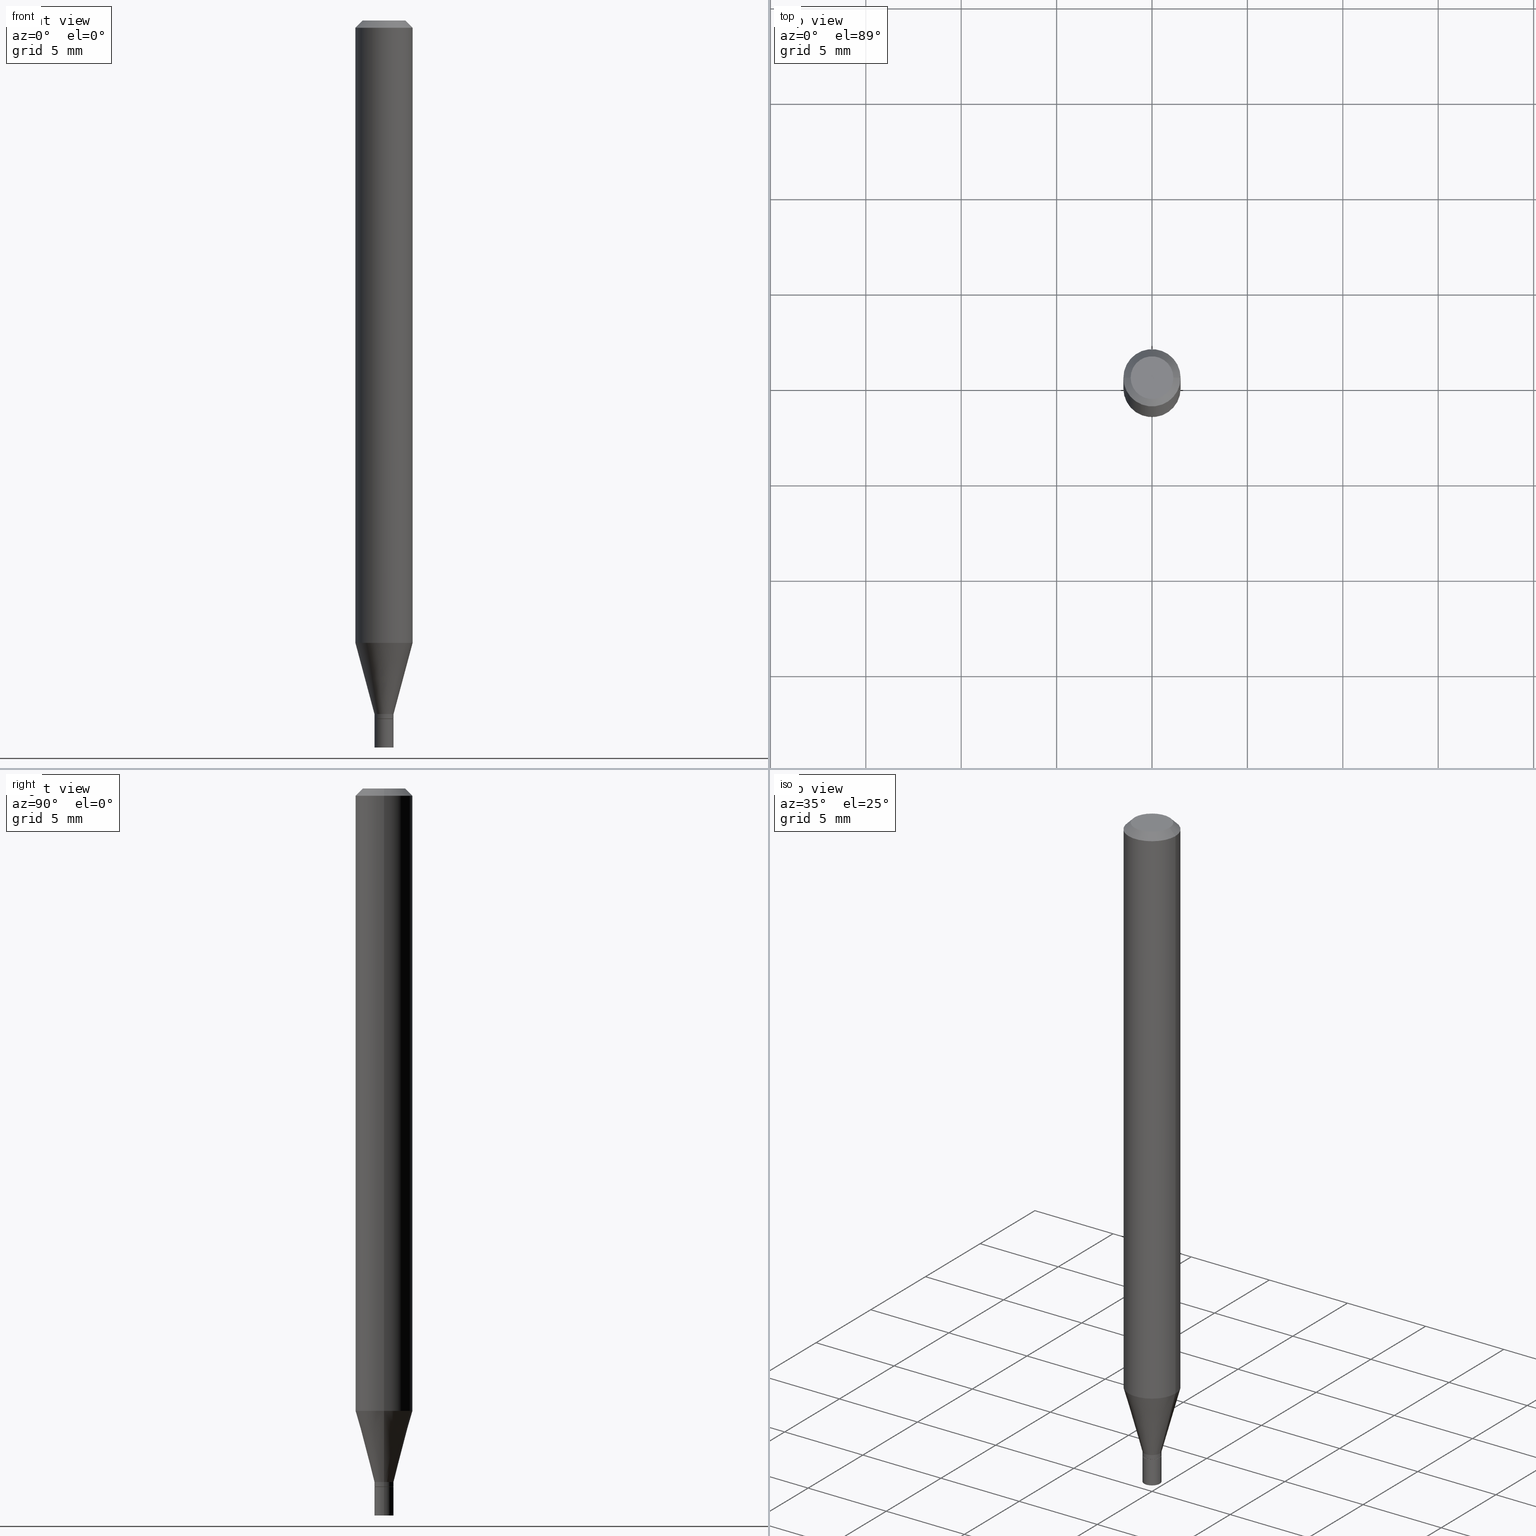
[diagram: canonical four-view strip — front | top / right | iso, engineering-drawing reading convention]
A machine part, canonical four-view strip (front | top / right | iso — engineering-drawing reading convention). The complete STEP part file that produces these views, byte-faithful:
ISO-10303-21;
HEADER;
FILE_DESCRIPTION (( 'STEP AP203' ),
    '1' );
FILE_NAME ('05085.STEP',
    '2024-03-14T17:47:37',
    ( '' ),
    ( '' ),
    'SwSTEP 2.0',
    'SolidWorks 2023',
    '' );
FILE_SCHEMA (( 'CONFIG_CONTROL_DESIGN' ));
ENDSEC;

DATA;
#1 = EDGE_CURVE ( 'NONE', #26, #137, #103, .T. ) ;
#2 = DIRECTION ( 'NONE',  ( 0.7071067811865656694, -2.468850131082446387E-15, 0.7071067811865294761 ) ) ;
#3 = EDGE_LOOP ( 'NONE', ( #279, #107, #358, #334 ) ) ;
#4 = CLOSED_SHELL ( 'NONE', ( #282, #310, #389, #378 ) ) ;
#5 = AXIS2_PLACEMENT_3D ( 'NONE', #386, #340, #23 ) ;
#6 = DIRECTION ( 'NONE',  ( -1.000000000000000000, 6.982962677686265922E-15, -4.876176775795935793E-29 ) ) ;
#7 = VERTEX_POINT ( 'NONE', #9 ) ;
#8 = AXIS2_PLACEMENT_3D ( 'NONE', #259, #188, #262 ) ;
#9 = CARTESIAN_POINT ( 'NONE',  ( -0.01969999999999965182, -4.459811605909121856E-15, -1.430900000000000061 ) ) ;
#10 = CC_DESIGN_DATE_AND_TIME_ASSIGNMENT ( #333, #335, ( #337 ) ) ;
#11 = APPROVAL_DATE_TIME ( #221, #274 ) ;
#12 = DIRECTION ( 'NONE',  ( 2.445468806185136597E-29, -3.491481338843145583E-15, -1.000000000000000000 ) ) ;
#13 = CARTESIAN_POINT ( 'NONE',  ( 3.522453268429071882E-29, -5.029129720469667852E-15, -1.440400000000000347 ) ) ;
#14 = DIRECTION ( 'NONE',  ( -2.445468806185136597E-29, 3.491481338843145583E-15, 1.000000000000000000 ) ) ;
#15 = DIRECTION ( 'NONE',  ( -2.445468806185136597E-29, 3.491481338843145583E-15, 1.000000000000000000 ) ) ;
#16 = CIRCLE ( 'NONE', #265, 0.01969999999999999876 ) ;
#17 = DIRECTION ( 'NONE',  ( -2.445468806185136597E-29, 3.491481338843145583E-15, 1.000000000000000000 ) ) ;
#18 = EDGE_LOOP ( 'NONE', ( #66, #401, #246, #182 ) ) ;
#19 = DIRECTION ( 'NONE',  ( 1.000000000000000000, -6.982962677686253300E-15, 0.000000000000000000 ) ) ;
#20 = LINE ( 'NONE', #86, #171 ) ;
#21 = VECTOR ( 'NONE', #336, 39.37007874015748143 ) ;
#22 = DIRECTION ( 'NONE',  ( -2.445468806185136597E-29, 3.491481338843145583E-15, 1.000000000000000000 ) ) ;
#23 = DIRECTION ( 'NONE',  ( 1.000000000000000000, -6.982962677686265922E-15, 4.876176775795935793E-29 ) ) ;
#24 = EDGE_CURVE ( 'NONE', #216, #431, #444, .T. ) ;
#25 = DIRECTION ( 'NONE',  ( 2.438088387897960049E-29, -3.491481338843145188E-15, -1.000000000000000000 ) ) ;
#26 = VERTEX_POINT ( 'NONE', #145 ) ;
#27 = CARTESIAN_POINT ( 'NONE',  ( 3.668203209277704895E-29, -5.237222008264718177E-15, -1.500000000000000222 ) ) ;
#28 = EDGE_LOOP ( 'NONE', ( #131, #191, #356, #466 ) ) ;
#29 = ADVANCED_FACE ( 'NONE', ( #300 ), #46, .T. ) ;
#30 = FACE_OUTER_BOUND ( 'NONE', #353, .T. ) ;
#31 = ORIENTED_EDGE ( 'NONE', *, *, #425, .T. ) ;
#32 = APPLICATION_CONTEXT ( 'configuration controlled 3d designs of mechanical parts and assemblies' ) ;
#33 = LINE ( 'NONE', #130, #38 ) ;
#34 = ORIENTED_EDGE ( 'NONE', *, *, #187, .T. ) ;
#35 = FACE_OUTER_BOUND ( 'NONE', #250, .T. ) ;
#36 = ORIENTED_EDGE ( 'NONE', *, *, #212, .T. ) ;
#37 = UNCERTAINTY_MEASURE_WITH_UNIT (LENGTH_MEASURE( 1.000000000000000082E-05 ), #252, 'distance_accuracy_value', 'NONE');
#38 = VECTOR ( 'NONE', #135, 39.37007874015748143 ) ;
#39 = EDGE_CURVE ( 'NONE', #431, #216, #379, .T. ) ;
#40 = APPROVAL_DATE_TIME ( #372, #254 ) ;
#41 = DIRECTION ( 'NONE',  ( 1.000000000000000000, -6.982962677686273021E-15, 0.000000000000000000 ) ) ;
#42 = APPROVAL_ROLE ( '' ) ;
#43 = DIRECTION ( 'NONE',  ( -0.7071067811865656694, 7.493145998870420424E-15, 0.7071067811865294761 ) ) ;
#44 = SHAPE_DEFINITION_REPRESENTATION ( #201, #305 ) ;
#45 = CARTESIAN_POINT ( 'NONE',  ( 3.523676002832163563E-29, -5.030875461139089355E-15, -1.440900000000000292 ) ) ;
#46 = CONICAL_SURFACE ( 'NONE', #263, 0.01919999999999999485, 0.7853981633974739252 ) ;
#47 = AXIS2_PLACEMENT_3D ( 'NONE', #306, #450, #124 ) ;
#48 = PERSON_AND_ORGANIZATION_ROLE ( 'design_supplier' ) ;
#49 = CARTESIAN_POINT ( 'NONE',  ( -8.641182519006283330E-45, 1.233731848647590289E-30, 3.533548453838708869E-16 ) ) ;
#50 = PERSON_AND_ORGANIZATION ( #160, #307 ) ;
#51 = CARTESIAN_POINT ( 'NONE',  ( 0.000000000000000000, 0.000000000000000000, 0.000000000000000000 ) ) ;
#52 = DIRECTION ( 'NONE',  ( -2.445468806185136597E-29, 3.491481338843145583E-15, 1.000000000000000000 ) ) ;
#53 = CC_DESIGN_APPROVAL ( #274, ( #290 ) ) ;
#54 = VECTOR ( 'NONE', #202, 39.37007874015748143 ) ;
#55 = CC_DESIGN_PERSON_AND_ORGANIZATION_ASSIGNMENT ( #440, #74, ( #272 ) ) ;
#56 = CARTESIAN_POINT ( 'NONE',  ( -0.01919999999999999485, -4.891802028699038955E-15, -1.440900000000000292 ) ) ;
#57 = PLANE ( 'NONE',  #5 ) ;
#58 = LOCAL_TIME ( 13, 47, 37.00000000000000000, #190 ) ;
#59 = DIRECTION ( 'NONE',  ( 1.000000000000000000, -6.982962677686265922E-15, 4.819687581474398999E-29 ) ) ;
#60 = ORIENTED_EDGE ( 'NONE', *, *, #39, .T. ) ;
#61 = AXIS2_PLACEMENT_3D ( 'NONE', #84, #223, #80 ) ;
#62 = CARTESIAN_POINT ( 'NONE',  ( -0.05904999999999999832, -4.063639483012322948E-15, -1.284043800722163953 ) ) ;
#63 = CARTESIAN_POINT ( 'NONE',  ( 0.05904999999999999832, -4.895558914596035784E-15, -1.284043800722163953 ) ) ;
#64 = EDGE_CURVE ( 'NONE', #206, #400, #436, .T. ) ;
#65 = CARTESIAN_POINT ( 'NONE',  ( 0.04404999999999999888, -3.798447818264454163E-16, 3.533548453838733521E-16 ) ) ;
#66 = ORIENTED_EDGE ( 'NONE', *, *, #177, .T. ) ;
#67 =( LENGTH_UNIT ( ) NAMED_UNIT ( * ) SI_UNIT ( $, .METRE. ) );
#68 = EDGE_CURVE ( 'NONE', #143, #26, #261, .T. ) ;
#69 = ORIENTED_EDGE ( 'NONE', *, *, #331, .T. ) ;
#70 = DIRECTION ( 'NONE',  ( 2.445468806185136597E-29, -3.491481338843145583E-15, -1.000000000000000000 ) ) ;
#71 = ORIENTED_EDGE ( 'NONE', *, *, #260, .T. ) ;
#72 = DIRECTION ( 'NONE',  ( -2.445468806185136877E-29, 3.491481338843145188E-15, 1.000000000000000000 ) ) ;
#73 = ORIENTED_EDGE ( 'NONE', *, *, #383, .F. ) ;
#74 = PERSON_AND_ORGANIZATION_ROLE ( 'design_owner' ) ;
#75 = VERTEX_POINT ( 'NONE', #339 ) ;
#76 = PERSON_AND_ORGANIZATION_ROLE ( 'creator' ) ;
#77 = CARTESIAN_POINT ( 'NONE',  ( 3.668203209277705088E-31, -5.237222008264718399E-17, -0.01499999999999999944 ) ) ;
#78 = CYLINDRICAL_SURFACE ( 'NONE', #119, 0.05904999999999999832 ) ;
#79 = APPROVAL_ROLE ( '' ) ;
#80 = DIRECTION ( 'NONE',  ( 1.000000000000000000, -6.982962677686266711E-15, 0.000000000000000000 ) ) ;
#81 = EDGE_CURVE ( 'NONE', #253, #457, #301, .T. ) ;
#82 = CIRCLE ( 'NONE', #309, 0.04404999999999999888 ) ;
#83 = CALENDAR_DATE ( 2024, 14, 3 ) ;
#84 = CARTESIAN_POINT ( 'NONE',  ( 3.668203209277705088E-31, -5.237222008264718399E-17, -0.01499999999999999944 ) ) ;
#85 = APPROVAL_PERSON_ORGANIZATION ( #434, #132, #42 ) ;
#86 = CARTESIAN_POINT ( 'NONE',  ( 0.01969999999999965182, -5.133525012501073765E-15, -1.430900000000000061 ) ) ;
#87 = CC_DESIGN_PERSON_AND_ORGANIZATION_ASSIGNMENT ( #256, #432, ( #337 ) ) ;
#88 = CARTESIAN_POINT ( 'NONE',  ( 3.576687321579069994E-29, -5.368277968210015545E-15, -1.500000000000000222 ) ) ;
#89 = CONICAL_SURFACE ( 'NONE', #47, 0.01919999999999999485, 0.7853981633974739252 ) ;
#90 = LINE ( 'NONE', #235, #354 ) ;
#91 = DIRECTION ( 'NONE',  ( 0.2588190451025216832, 1.565188264969619798E-15, 0.9659258262890679791 ) ) ;
#92 = APPROVAL_PERSON_ORGANIZATION ( #288, #254, #227 ) ;
#93 = DIRECTION ( 'NONE',  ( -2.445468806185136597E-29, 3.491481338843145583E-15, 1.000000000000000000 ) ) ;
#94 = EDGE_LOOP ( 'NONE', ( #34, #320, #443, #412 ) ) ;
#95 = AXIS2_PLACEMENT_3D ( 'NONE', #172, #70, #319 ) ;
#96 = CYLINDRICAL_SURFACE ( 'NONE', #156, 0.01969999999999999876 ) ;
#97 = ORIENTED_EDGE ( 'NONE', *, *, #269, .F. ) ;
#98 = CARTESIAN_POINT ( 'NONE',  ( 0.01919999999999999485, -5.164948344550665562E-15, -1.440900000000000292 ) ) ;
#99 = ORIENTED_EDGE ( 'NONE', *, *, #343, .T. ) ;
#100 = EDGE_CURVE ( 'NONE', #189, #424, #315, .T. ) ;
#101 = CARTESIAN_POINT ( 'NONE',  ( 3.075995059520799729E-16, 0.04404999999999999888, 2.287766971589489619E-17 ) ) ;
#102 = EDGE_LOOP ( 'NONE', ( #264, #153, #360, #303 ) ) ;
#103 = CIRCLE ( 'NONE', #61, 0.05904999999999999832 ) ;
#104 = CARTESIAN_POINT ( 'NONE',  ( 3.499221314770312017E-29, -4.995960647750656917E-15, -1.430900000000000061 ) ) ;
#105 = ORIENTED_EDGE ( 'NONE', *, *, #425, .F. ) ;
#106 = ORIENTED_EDGE ( 'NONE', *, *, #365, .F. ) ;
#107 = ORIENTED_EDGE ( 'NONE', *, *, #121, .F. ) ;
#108 = COORDINATED_UNIVERSAL_TIME_OFFSET ( 5, 0, .BEHIND. ) ;
#109 = DIRECTION ( 'NONE',  ( 1.000000000000000000, -6.982962677686265922E-15, 4.819687581474398999E-29 ) ) ;
#110 = AXIS2_PLACEMENT_3D ( 'NONE', #342, #273, #157 ) ;
#111 = ADVANCED_FACE ( 'NONE', ( #441 ), #186, .T. ) ;
#112 = APPROVAL_STATUS ( 'not_yet_approved' ) ;
#113 = DIRECTION ( 'NONE',  ( -2.445468806185136597E-29, 3.491481338843145583E-15, 1.000000000000000000 ) ) ;
#114 = EDGE_CURVE ( 'NONE', #189, #400, #258, .T. ) ;
#115 = PERSON_AND_ORGANIZATION ( #160, #307 ) ;
#116 = CARTESIAN_POINT ( 'NONE',  ( 0.000000000000000000, 0.000000000000000000, 0.000000000000000000 ) ) ;
#117 = APPROVAL_PERSON_ORGANIZATION ( #326, #274, #79 ) ;
#118 = CARTESIAN_POINT ( 'NONE',  ( 0.05904999999999999832, -4.574846268510561447E-16, -0.01499999999999999944 ) ) ;
#119 = AXIS2_PLACEMENT_3D ( 'NONE', #51, #194, #231 ) ;
#120 = DIRECTION ( 'NONE',  ( 1.000000000000000000, -6.982962677686258033E-15, 0.000000000000000000 ) ) ;
#121 = EDGE_CURVE ( 'NONE', #143, #463, #226, .T. ) ;
#122 = AXIS2_PLACEMENT_3D ( 'NONE', #101, #390, #6 ) ;
#123 = LINE ( 'NONE', #159, #54 ) ;
#124 = DIRECTION ( 'NONE',  ( 1.000000000000000000, -6.982962677686253300E-15, 0.000000000000000000 ) ) ;
#125 = EDGE_CURVE ( 'NONE', #463, #137, #299, .T. ) ;
#126 = DIRECTION ( 'NONE',  ( -2.445468806185136877E-29, 3.491481338843145188E-15, 1.000000000000000000 ) ) ;
#127 = CARTESIAN_POINT ( 'NONE',  ( 3.499221314770312017E-29, -4.995960647750656917E-15, -1.430900000000000061 ) ) ;
#128 = PLANE ( 'NONE',  #293 ) ;
#129 = AXIS2_PLACEMENT_3D ( 'NONE', #245, #426, #324 ) ;
#130 = CARTESIAN_POINT ( 'NONE',  ( -0.01969999999999978366, 1.399769189447381994E-16, -9.690302127802057404E-31 ) ) ;
#131 = ORIENTED_EDGE ( 'NONE', *, *, #64, .T. ) ;
#132 = APPROVAL ( #368, 'UNSPECIFIED' ) ;
#133 = CARTESIAN_POINT ( 'NONE',  ( 3.523676002832163563E-29, -5.030875461139089355E-15, -1.440900000000000292 ) ) ;
#134 = ORIENTED_EDGE ( 'NONE', *, *, #404, .F. ) ;
#135 = DIRECTION ( 'NONE',  ( -2.445468806185136877E-29, 3.491481338843145188E-15, 1.000000000000000000 ) ) ;
#136 = MANIFOLD_SOLID_BREP ( 'Body-Move/Copy2[2]', #451 ) ;
#137 = VERTEX_POINT ( 'NONE', #257 ) ;
#138 = PLANE ( 'NONE',  #122 ) ;
#139 = AXIS2_PLACEMENT_3D ( 'NONE', #162, #22, #311 ) ;
#140 = ORIENTED_EDGE ( 'NONE', *, *, #376, .T. ) ;
#141 = APPLICATION_CONTEXT ( 'configuration controlled 3d designs of mechanical parts and assemblies' ) ;
#142 = CARTESIAN_POINT ( 'NONE',  ( 1.375643647504546638E-16, 0.01969999999999496459, -1.440900000000000292 ) ) ;
#143 = VERTEX_POINT ( 'NONE', #403 ) ;
#144 = APPROVAL_STATUS ( 'not_yet_approved' ) ;
#145 = CARTESIAN_POINT ( 'NONE',  ( -0.05904999999999999832, -1.848218108814315465E-15, -0.01499999999999999944 ) ) ;
#146 = ADVANCED_FACE ( 'NONE', ( #375 ), #150, .T. ) ;
#147 = MANIFOLD_SOLID_BREP ( 'Body-Move/Copy2[1]', #4 ) ;
#148 = PERSON_AND_ORGANIZATION ( #160, #307 ) ;
#149 = DIRECTION ( 'NONE',  ( -1.000000000000000000, 6.982962677686266711E-15, 0.000000000000000000 ) ) ;
#150 = CONICAL_SURFACE ( 'NONE', #371, 0.05904999999999999832, 0.7853981633974366217 ) ;
#151 = ADVANCED_FACE ( 'NONE', ( #406 ), #78, .T. ) ;
#152 = CARTESIAN_POINT ( 'NONE',  ( 3.668203209277704895E-29, -5.237222008264718177E-15, -1.500000000000000222 ) ) ;
#153 = ORIENTED_EDGE ( 'NONE', *, *, #125, .T. ) ;
#154 = DIRECTION ( 'NONE',  ( 1.000000000000000000, -6.982962677686253300E-15, 0.000000000000000000 ) ) ;
#155 = ADVANCED_FACE ( 'NONE', ( #377 ), #57, .F. ) ;
#156 = AXIS2_PLACEMENT_3D ( 'NONE', #357, #352, #166 ) ;
#157 = DIRECTION ( 'NONE',  ( 1.000000000000000000, -6.982962677686267499E-15, 4.876176775795935793E-29 ) ) ;
#158 = FACE_OUTER_BOUND ( 'NONE', #295, .T. ) ;
#159 = CARTESIAN_POINT ( 'NONE',  ( -0.01969999999999999876, 1.399769189447397278E-16, -9.690302127802162501E-31 ) ) ;
#160 = PERSON ( 'UNSPECIFIED', 'UNSPECIFIED', 'UNSPECIFIED', ('UNSPECIFIED'), ('UNSPECIFIED'), ('UNSPECIFIED') ) ;
#161 = AXIS2_PLACEMENT_3D ( 'NONE', #127, #302, #199 ) ;
#162 = CARTESIAN_POINT ( 'NONE',  ( 3.499221314770312017E-29, -4.995960647750656917E-15, -1.430900000000000061 ) ) ;
#163 = VECTOR ( 'NONE', #2, 39.37007874015748143 ) ;
#164 = CYLINDRICAL_SURFACE ( 'NONE', #110, 0.01969999999999978366 ) ;
#165 =( GEOMETRIC_REPRESENTATION_CONTEXT ( 3 ) GLOBAL_UNCERTAINTY_ASSIGNED_CONTEXT ( ( #37 ) ) GLOBAL_UNIT_ASSIGNED_CONTEXT ( ( #252, #442, #296 ) ) REPRESENTATION_CONTEXT ( 'NONE', 'WORKASPACE' ) );
#166 = DIRECTION ( 'NONE',  ( 1.000000000000000000, -6.982962677686265922E-15, 4.876176775795935232E-29 ) ) ;
#167 = DIMENSIONAL_EXPONENTS ( 1.000000000000000000, 0.000000000000000000, 0.000000000000000000, 0.000000000000000000, 0.000000000000000000, 0.000000000000000000, 0.000000000000000000 ) ;
#168 = CC_DESIGN_PERSON_AND_ORGANIZATION_ASSIGNMENT ( #148, #48, ( #464 ) ) ;
#169 = EDGE_LOOP ( 'NONE', ( #411, #429 ) ) ;
#170 = AXIS2_PLACEMENT_3D ( 'NONE', #222, #327, #41 ) ;
#171 = VECTOR ( 'NONE', #91, 39.37007874015748143 ) ;
#172 = CARTESIAN_POINT ( 'NONE',  ( 3.668203209277705088E-31, -5.237222008264718399E-17, -0.01499999999999999944 ) ) ;
#173 = ORIENTED_EDGE ( 'NONE', *, *, #447, .F. ) ;
#174 = DIRECTION ( 'NONE',  ( -2.445468806185136597E-29, 3.491481338843145583E-15, 1.000000000000000000 ) ) ;
#175 = ORIENTED_EDGE ( 'NONE', *, *, #121, .T. ) ;
#176 = CC_DESIGN_APPROVAL ( #132, ( #337 ) ) ;
#177 = EDGE_CURVE ( 'NONE', #424, #189, #402, .T. ) ;
#178 = LINE ( 'NONE', #355, #218 ) ;
#179 = EDGE_LOOP ( 'NONE', ( #106, #214, #36, #284 ) ) ;
#180 = DIRECTION ( 'NONE',  ( 1.000000000000000000, -6.982962677686267499E-15, 4.876176775795935793E-29 ) ) ;
#181 = VECTOR ( 'NONE', #280, 39.37007874015748143 ) ;
#182 = ORIENTED_EDGE ( 'NONE', *, *, #449, .F. ) ;
#183 = COORDINATED_UNIVERSAL_TIME_OFFSET ( 5, 0, .BEHIND. ) ;
#184 = DIRECTION ( 'NONE',  ( -2.445468806185136597E-29, 3.491481338843145583E-15, 1.000000000000000000 ) ) ;
#185 = DATE_AND_TIME ( #294, #58 ) ;
#186 = CYLINDRICAL_SURFACE ( 'NONE', #437, 0.05904999999999999832 ) ;
#187 = EDGE_CURVE ( 'NONE', #75, #7, #459, .T. ) ;
#188 = DIRECTION ( 'NONE',  ( 0.000000000000000000, 0.000000000000000000, 1.000000000000000000 ) ) ;
#189 = VERTEX_POINT ( 'NONE', #56 ) ;
#190 = COORDINATED_UNIVERSAL_TIME_OFFSET ( 5, 0, .BEHIND. ) ;
#191 = ORIENTED_EDGE ( 'NONE', *, *, #404, .T. ) ;
#192 = LOCAL_TIME ( 13, 47, 37.00000000000000000, #183 ) ;
#193 = PERSON_AND_ORGANIZATION_ROLE ( 'creator' ) ;
#194 = DIRECTION ( 'NONE',  ( -2.445468806185136597E-29, 3.491481338843145583E-15, 1.000000000000000000 ) ) ;
#195 = CARTESIAN_POINT ( 'NONE',  ( -0.05904999999999999832, 4.195754854663391478E-16, -2.904631170795521892E-30 ) ) ;
#196 = AXIS2_PLACEMENT_3D ( 'NONE', #152, #15, #292 ) ;
#197 = VECTOR ( 'NONE', #72, 39.37007874015748143 ) ;
#198 = CYLINDRICAL_SURFACE ( 'NONE', #277, 0.01969999999999999876 ) ;
#199 = DIRECTION ( 'NONE',  ( 1.000000000000000000, -6.982962677686254089E-15, 0.000000000000000000 ) ) ;
#200 = ADVANCED_FACE ( 'NONE', ( #270 ), #164, .T. ) ;
#201 = PRODUCT_DEFINITION_SHAPE ( 'NONE', 'NONE',  #290 ) ;
#202 = DIRECTION ( 'NONE',  ( -2.445468806185136877E-29, 3.491481338843145188E-15, 1.000000000000000000 ) ) ;
#203 = AXIS2_PLACEMENT_3D ( 'NONE', #142, #25, #249 ) ;
#204 = DIRECTION ( 'NONE',  ( 1.000000000000000000, -6.982962677686254089E-15, 0.000000000000000000 ) ) ;
#205 = DIRECTION ( 'NONE',  ( 1.000000000000000000, -6.982962677686278543E-15, 0.000000000000000000 ) ) ;
#206 = VERTEX_POINT ( 'NONE', #381 ) ;
#207 = CYLINDRICAL_SURFACE ( 'NONE', #445, 0.01969999999999978366 ) ;
#208 = EDGE_LOOP ( 'NONE', ( #325, #219, #314, #211 ) ) ;
#209 = AXIS2_PLACEMENT_3D ( 'NONE', #104, #174, #210 ) ;
#210 = DIRECTION ( 'NONE',  ( 1.000000000000000000, -6.982962677686254089E-15, 0.000000000000000000 ) ) ;
#211 = ORIENTED_EDGE ( 'NONE', *, *, #331, .F. ) ;
#212 = EDGE_CURVE ( 'NONE', #75, #431, #20, .T. ) ;
#213 = FACE_OUTER_BOUND ( 'NONE', #28, .T. ) ;
#214 = ORIENTED_EDGE ( 'NONE', *, *, #347, .T. ) ;
#215 = LENGTH_MEASURE_WITH_UNIT ( LENGTH_MEASURE( 0.02539999999999999897 ), #67 );
#216 = VERTEX_POINT ( 'NONE', #62 ) ;
#217 = COORDINATED_UNIVERSAL_TIME_OFFSET ( 5, 0, .BEHIND. ) ;
#218 = VECTOR ( 'NONE', #462, 39.37007874015748143 ) ;
#219 = ORIENTED_EDGE ( 'NONE', *, *, #238, .T. ) ;
#220 = CC_DESIGN_PERSON_AND_ORGANIZATION_ASSIGNMENT ( #50, #193, ( #464 ) ) ;
#221 = DATE_AND_TIME ( #83, #392 ) ;
#222 = CARTESIAN_POINT ( 'NONE',  ( 3.140089060441456086E-29, -4.483214968478662441E-15, -1.284043800722163953 ) ) ;
#223 = DIRECTION ( 'NONE',  ( -2.445468806185136597E-29, 3.491481338843145583E-15, 1.000000000000000000 ) ) ;
#224 = DATE_TIME_ROLE ( 'creation_date' ) ;
#225 = DIRECTION ( 'NONE',  ( 1.000000000000000000, -6.982962677686266711E-15, 4.876176775795936353E-29 ) ) ;
#226 = CIRCLE ( 'NONE', #430, 0.04404999999999999888 ) ;
#227 = APPROVAL_ROLE ( '' ) ;
#228 = DIRECTION ( 'NONE',  ( -2.445468806185136597E-29, 3.491481338843145583E-15, 1.000000000000000000 ) ) ;
#229 = EDGE_CURVE ( 'NONE', #400, #206, #255, .T. ) ;
#230 = LOCAL_TIME ( 13, 47, 37.00000000000000000, #405 ) ;
#231 = DIRECTION ( 'NONE',  ( 1.000000000000000000, -6.982962677686266711E-15, 4.876176775795936353E-29 ) ) ;
#232 = FACE_OUTER_BOUND ( 'NONE', #18, .T. ) ;
#233 = AXIS2_PLACEMENT_3D ( 'NONE', #13, #369, #120 ) ;
#234 = AXIS2_PLACEMENT_3D ( 'NONE', #268, #382, #308 ) ;
#235 = CARTESIAN_POINT ( 'NONE',  ( 0.01969999999999999876, -1.375643647504194363E-16, 9.606068248317991466E-31 ) ) ;
#236 = CARTESIAN_POINT ( 'NONE',  ( -8.641182519006283330E-45, 1.233731848647590289E-30, 3.533548453838708869E-16 ) ) ;
#237 = CARTESIAN_POINT ( 'NONE',  ( 0.000000000000000000, 0.000000000000000000, 0.000000000000000000 ) ) ;
#238 = EDGE_CURVE ( 'NONE', #253, #351, #123, .T. ) ;
#239 = CARTESIAN_POINT ( 'NONE',  ( -0.01969999999999965182, -4.855983728805919186E-15, -1.430900000000000061 ) ) ;
#240 = AXIS2_PLACEMENT_3D ( 'NONE', #133, #321, #205 ) ;
#241 = ORIENTED_EDGE ( 'NONE', *, *, #229, .T. ) ;
#242 = ADVANCED_FACE ( 'NONE', ( #344 ), #345, .T. ) ;
#243 = CARTESIAN_POINT ( 'NONE',  ( 0.01919999999999999485, -5.164948344550665562E-15, -1.440900000000000292 ) ) ;
#244 = EDGE_LOOP ( 'NONE', ( #60, #71, #97, #105 ) ) ;
#245 = CARTESIAN_POINT ( 'NONE',  ( 3.523676002832163563E-29, -5.030875461139089355E-15, -1.440900000000000292 ) ) ;
#246 = ORIENTED_EDGE ( 'NONE', *, *, #64, .F. ) ;
#247 = AXIS2_PLACEMENT_3D ( 'NONE', #364, #446, #373 ) ;
#248 = AXIS2_PLACEMENT_3D ( 'NONE', #312, #93, #448 ) ;
#249 = DIRECTION ( 'NONE',  ( -1.000000000000000000, 6.982962677686265922E-15, -4.876176775795935793E-29 ) ) ;
#250 = EDGE_LOOP ( 'NONE', ( #140, #391 ) ) ;
#251 = ORIENTED_EDGE ( 'NONE', *, *, #229, .F. ) ;
#252 =( CONVERSION_BASED_UNIT ( 'INCH', #215 ) LENGTH_UNIT ( ) NAMED_UNIT ( #167 ) );
#253 = VERTEX_POINT ( 'NONE', #271 ) ;
#254 = APPROVAL ( #144, 'UNSPECIFIED' ) ;
#255 = CIRCLE ( 'NONE', #248, 0.01969999999999991896 ) ;
#256 = PERSON_AND_ORGANIZATION ( #160, #307 ) ;
#257 = CARTESIAN_POINT ( 'NONE',  ( 0.05904999999999999832, -4.647161662000212105E-16, -0.01499999999999999944 ) ) ;
#258 = LINE ( 'NONE', #435, #421 ) ;
#259 = CARTESIAN_POINT ( 'NONE',  ( 0.000000000000000000, 0.000000000000000000, 0.000000000000000000 ) ) ;
#260 = EDGE_CURVE ( 'NONE', #216, #26, #418, .T. ) ;
#261 = LINE ( 'NONE', #267, #21 ) ;
#262 = DIRECTION ( 'NONE',  ( 1.000000000000000000, 0.000000000000000000, 0.000000000000000000 ) ) ;
#263 = AXIS2_PLACEMENT_3D ( 'NONE', #45, #228, #154 ) ;
#264 = ORIENTED_EDGE ( 'NONE', *, *, #343, .F. ) ;
#265 = AXIS2_PLACEMENT_3D ( 'NONE', #27, #313, #420 ) ;
#266 = DESIGN_CONTEXT ( 'detailed design', #141, 'design' ) ;
#267 = CARTESIAN_POINT ( 'NONE',  ( -0.05904999999999999832, 3.599717260347268549E-16, -0.01499999999999999944 ) ) ;
#268 = CARTESIAN_POINT ( 'NONE',  ( 3.668203209277705088E-31, -5.237222008264718399E-17, -0.01499999999999999944 ) ) ;
#269 = EDGE_CURVE ( 'NONE', #137, #26, #380, .T. ) ;
#270 = FACE_OUTER_BOUND ( 'NONE', #427, .T. ) ;
#271 = CARTESIAN_POINT ( 'NONE',  ( -0.01969999999999999876, -4.994071815757163668E-15, -1.500000000000000222 ) ) ;
#272 = PRODUCT ( '05085', '05085', '', ( #410 ) ) ;
#273 = DIRECTION ( 'NONE',  ( -2.445468806185136597E-29, 3.491481338843145583E-15, 1.000000000000000000 ) ) ;
#274 = APPROVAL ( #112, 'UNSPECIFIED' ) ;
#275 = DIRECTION ( 'NONE',  ( 1.000000000000000000, -6.982962677686265922E-15, 4.876176775795935793E-29 ) ) ;
#276 = ORIENTED_EDGE ( 'NONE', *, *, #100, .T. ) ;
#277 = AXIS2_PLACEMENT_3D ( 'NONE', #237, #453, #419 ) ;
#278 = LINE ( 'NONE', #98, #163 ) ;
#279 = ORIENTED_EDGE ( 'NONE', *, *, #125, .F. ) ;
#280 = DIRECTION ( 'NONE',  ( -0.2588190451025216832, 5.211531920934551831E-15, 0.9659258262890679791 ) ) ;
#281 = ORIENTED_EDGE ( 'NONE', *, *, #81, .F. ) ;
#282 = ADVANCED_FACE ( 'NONE', ( #341 ), #198, .T. ) ;
#283 = LINE ( 'NONE', #239, #181 ) ;
#284 = ORIENTED_EDGE ( 'NONE', *, *, #24, .F. ) ;
#285 = CONICAL_SURFACE ( 'NONE', #209, 0.01969999999999965182, 0.2617993877991502960 ) ;
#286 = CIRCLE ( 'NONE', #240, 0.01969999999999999876 ) ;
#287 = ORIENTED_EDGE ( 'NONE', *, *, #417, .T. ) ;
#288 = PERSON_AND_ORGANIZATION ( #160, #307 ) ;
#289 = ORIENTED_EDGE ( 'NONE', *, *, #238, .F. ) ;
#290 = PRODUCT_DEFINITION ( 'UNKNOWN', '', #464, #266 ) ;
#291 = CALENDAR_DATE ( 2024, 14, 3 ) ;
#292 = DIRECTION ( 'NONE',  ( 1.000000000000000000, -6.982962677686278543E-15, 0.000000000000000000 ) ) ;
#293 = AXIS2_PLACEMENT_3D ( 'NONE', #88, #348, #275 ) ;
#294 = CALENDAR_DATE ( 2024, 14, 3 ) ;
#295 = EDGE_LOOP ( 'NONE', ( #73, #281 ) ) ;
#296 =( NAMED_UNIT ( * ) SI_UNIT ( $, .STERADIAN. ) SOLID_ANGLE_UNIT ( ) );
#297 = CARTESIAN_POINT ( 'NONE',  ( 3.523676002832163563E-29, -5.030875461139089355E-15, -1.440900000000000292 ) ) ;
#298 = APPLICATION_PROTOCOL_DEFINITION ( 'international standard', 'config_control_design', 1994, #32 ) ;
#299 = LINE ( 'NONE', #118, #361 ) ;
#300 = FACE_OUTER_BOUND ( 'NONE', #317, .T. ) ;
#301 = CIRCLE ( 'NONE', #196, 0.01969999999999999876 ) ;
#302 = DIRECTION ( 'NONE',  ( -2.445468806185136597E-29, 3.491481338843145583E-15, 1.000000000000000000 ) ) ;
#303 = ORIENTED_EDGE ( 'NONE', *, *, #68, .F. ) ;
#304 = CC_DESIGN_DATE_AND_TIME_ASSIGNMENT ( #363, #224, ( #290 ) ) ;
#305 = ADVANCED_BREP_SHAPE_REPRESENTATION ( '05085', ( #147, #136, #8 ), #165 ) ;
#306 = CARTESIAN_POINT ( 'NONE',  ( 3.523676002832163563E-29, -5.030875461139089355E-15, -1.440900000000000292 ) ) ;
#307 = ORGANIZATION ( 'UNSPECIFIED', 'UNSPECIFIED', '' ) ;
#308 = DIRECTION ( 'NONE',  ( 1.000000000000000000, -6.982962677686266711E-15, 0.000000000000000000 ) ) ;
#309 = AXIS2_PLACEMENT_3D ( 'NONE', #236, #384, #59 ) ;
#310 = ADVANCED_FACE ( 'NONE', ( #158 ), #128, .F. ) ;
#311 = DIRECTION ( 'NONE',  ( 1.000000000000000000, -6.982962677686254089E-15, 0.000000000000000000 ) ) ;
#312 = CARTESIAN_POINT ( 'NONE',  ( 3.522453268429071882E-29, -5.029129720469667852E-15, -1.440400000000000347 ) ) ;
#313 = DIRECTION ( 'NONE',  ( -2.445468806185136597E-29, 3.491481338843145583E-15, 1.000000000000000000 ) ) ;
#314 = ORIENTED_EDGE ( 'NONE', *, *, #376, .F. ) ;
#315 = CIRCLE ( 'NONE', #332, 0.01919999999999999485 ) ;
#316 = FACE_OUTER_BOUND ( 'NONE', #367, .T. ) ;
#317 = EDGE_LOOP ( 'NONE', ( #394, #276, #461, #251 ) ) ;
#318 = ADVANCED_FACE ( 'NONE', ( #232 ), #89, .T. ) ;
#319 = DIRECTION ( 'NONE',  ( -1.000000000000000000, 6.982962677686266711E-15, 0.000000000000000000 ) ) ;
#320 = ORIENTED_EDGE ( 'NONE', *, *, #365, .T. ) ;
#321 = DIRECTION ( 'NONE',  ( -2.445468806185136597E-29, 3.491481338843145583E-15, 1.000000000000000000 ) ) ;
#322 = ORIENTED_EDGE ( 'NONE', *, *, #1, .F. ) ;
#323 = AXIS2_PLACEMENT_3D ( 'NONE', #456, #52, #204 ) ;
#324 = DIRECTION ( 'NONE',  ( 1.000000000000000000, -6.982962677686278543E-15, 0.000000000000000000 ) ) ;
#325 = ORIENTED_EDGE ( 'NONE', *, *, #383, .T. ) ;
#326 = PERSON_AND_ORGANIZATION ( #160, #307 ) ;
#327 = DIRECTION ( 'NONE',  ( -2.445468806185136597E-29, 3.491481338843145583E-15, 1.000000000000000000 ) ) ;
#328 = LOCAL_TIME ( 13, 47, 37.00000000000000000, #108 ) ;
#329 = APPROVAL_DATE_TIME ( #185, #132 ) ;
#330 = DIRECTION ( 'NONE',  ( 0.7071067811865392461, -7.319954787623227646E-15, -0.7071067811865557884 ) ) ;
#331 = EDGE_CURVE ( 'NONE', #457, #455, #90, .T. ) ;
#332 = AXIS2_PLACEMENT_3D ( 'NONE', #297, #113, #439 ) ;
#333 = DATE_AND_TIME ( #291, #192 ) ;
#334 = ORIENTED_EDGE ( 'NONE', *, *, #1, .T. ) ;
#335 = DATE_TIME_ROLE ( 'classification_date' ) ;
#336 = DIRECTION ( 'NONE',  ( -0.7071067811865392461, 2.468850131082170286E-15, -0.7071067811865557884 ) ) ;
#337 = SECURITY_CLASSIFICATION ( '', '', #338 ) ;
#338 = SECURITY_CLASSIFICATION_LEVEL ( 'unclassified' ) ;
#339 = CARTESIAN_POINT ( 'NONE',  ( 0.01969999999999965182, -5.133525012501073765E-15, -1.430900000000000061 ) ) ;
#340 = DIRECTION ( 'NONE',  ( -2.438088387897960049E-29, 3.491481338843145188E-15, 1.000000000000000000 ) ) ;
#341 = FACE_OUTER_BOUND ( 'NONE', #208, .T. ) ;
#342 = CARTESIAN_POINT ( 'NONE',  ( 0.000000000000000000, 0.000000000000000000, 0.000000000000000000 ) ) ;
#343 = EDGE_CURVE ( 'NONE', #463, #143, #82, .T. ) ;
#344 = FACE_OUTER_BOUND ( 'NONE', #94, .T. ) ;
#345 = CONICAL_SURFACE ( 'NONE', #323, 0.01969999999999965182, 0.2617993877991502960 ) ;
#346 = ORIENTED_EDGE ( 'NONE', *, *, #24, .T. ) ;
#347 = EDGE_CURVE ( 'NONE', #7, #75, #415, .T. ) ;
#348 = DIRECTION ( 'NONE',  ( -2.438088387897960049E-29, 3.491481338843145188E-15, 1.000000000000000000 ) ) ;
#349 = EDGE_LOOP ( 'NONE', ( #433, #346, #31, #322 ) ) ;
#350 = CARTESIAN_POINT ( 'NONE',  ( 0.05904999999999999832, -4.123439461173740327E-16, 2.879382386107500220E-30 ) ) ;
#351 = VERTEX_POINT ( 'NONE', #454 ) ;
#352 = DIRECTION ( 'NONE',  ( -2.445468806185136597E-29, 3.491481338843145583E-15, 1.000000000000000000 ) ) ;
#353 = EDGE_LOOP ( 'NONE', ( #175, #99 ) ) ;
#354 = VECTOR ( 'NONE', #126, 39.37007874015748143 ) ;
#355 = CARTESIAN_POINT ( 'NONE',  ( 0.01969999999999978366, -1.375643647504179571E-16, 9.606068248317888120E-31 ) ) ;
#356 = ORIENTED_EDGE ( 'NONE', *, *, #187, .F. ) ;
#357 = CARTESIAN_POINT ( 'NONE',  ( 0.000000000000000000, 0.000000000000000000, 0.000000000000000000 ) ) ;
#358 = ORIENTED_EDGE ( 'NONE', *, *, #68, .T. ) ;
#359 = LINE ( 'NONE', #350, #197 ) ;
#360 = ORIENTED_EDGE ( 'NONE', *, *, #269, .T. ) ;
#361 = VECTOR ( 'NONE', #330, 39.37007874015748143 ) ;
#362 = ADVANCED_FACE ( 'NONE', ( #396 ), #285, .T. ) ;
#363 = DATE_AND_TIME ( #407, #328 ) ;
#364 = CARTESIAN_POINT ( 'NONE',  ( 3.140089060441456086E-29, -4.483214968478662441E-15, -1.284043800722163953 ) ) ;
#365 = EDGE_CURVE ( 'NONE', #7, #216, #283, .T. ) ;
#366 = PRODUCT_RELATED_PRODUCT_CATEGORY ( 'detail', '', ( #272 ) ) ;
#367 = EDGE_LOOP ( 'NONE', ( #289, #408, #69, #173 ) ) ;
#368 = APPROVAL_STATUS ( 'not_yet_approved' ) ;
#369 = DIRECTION ( 'NONE',  ( -2.445468806185136597E-29, 3.491481338843145583E-15, 1.000000000000000000 ) ) ;
#370 = ADVANCED_FACE ( 'NONE', ( #428 ), #409, .T. ) ;
#371 = AXIS2_PLACEMENT_3D ( 'NONE', #77, #12, #149 ) ;
#372 = DATE_AND_TIME ( #374, #230 ) ;
#373 = DIRECTION ( 'NONE',  ( 1.000000000000000000, -6.982962677686273021E-15, 0.000000000000000000 ) ) ;
#374 = CALENDAR_DATE ( 2024, 14, 3 ) ;
#375 = FACE_OUTER_BOUND ( 'NONE', #102, .T. ) ;
#376 = EDGE_CURVE ( 'NONE', #455, #351, #452, .T. ) ;
#377 = FACE_OUTER_BOUND ( 'NONE', #169, .T. ) ;
#378 = ADVANCED_FACE ( 'NONE', ( #35 ), #465, .F. ) ;
#379 = CIRCLE ( 'NONE', #170, 0.05904999999999999832 ) ;
#380 = CIRCLE ( 'NONE', #234, 0.05904999999999999832 ) ;
#381 = CARTESIAN_POINT ( 'NONE',  ( 0.01969999999999991896, -5.166694085220087066E-15, -1.440400000000000347 ) ) ;
#382 = DIRECTION ( 'NONE',  ( -2.445468806185136597E-29, 3.491481338843145583E-15, 1.000000000000000000 ) ) ;
#383 = EDGE_CURVE ( 'NONE', #457, #253, #16, .T. ) ;
#384 = DIRECTION ( 'NONE',  ( -2.445468806185136597E-29, 3.491481338843145583E-15, 1.000000000000000000 ) ) ;
#385 = ADVANCED_FACE ( 'NONE', ( #213 ), #207, .T. ) ;
#386 = CARTESIAN_POINT ( 'NONE',  ( 3.523676002832163563E-29, -5.030875461139089355E-15, -1.440900000000000292 ) ) ;
#387 = VECTOR ( 'NONE', #416, 39.37007874015748143 ) ;
#388 = CARTESIAN_POINT ( 'NONE',  ( -0.01969999999999991896, -4.889152801524928543E-15, -1.440400000000000347 ) ) ;
#389 = ADVANCED_FACE ( 'NONE', ( #316 ), #96, .T. ) ;
#390 = DIRECTION ( 'NONE',  ( 2.438088387897960049E-29, -3.491481338843145188E-15, -1.000000000000000000 ) ) ;
#391 = ORIENTED_EDGE ( 'NONE', *, *, #447, .T. ) ;
#392 = LOCAL_TIME ( 13, 47, 37.00000000000000000, #217 ) ;
#393 = CARTESIAN_POINT ( 'NONE',  ( 0.01969999999999999876, -5.374786373015138180E-15, -1.500000000000000222 ) ) ;
#394 = ORIENTED_EDGE ( 'NONE', *, *, #114, .F. ) ;
#395 = AXIS2_PLACEMENT_3D ( 'NONE', #414, #17, #19 ) ;
#396 = FACE_OUTER_BOUND ( 'NONE', #179, .T. ) ;
#397 = ORIENTED_EDGE ( 'NONE', *, *, #347, .F. ) ;
#398 = DIRECTION ( 'NONE',  ( -2.445468806185136597E-29, 3.491481338843145583E-15, 1.000000000000000000 ) ) ;
#399 = CC_DESIGN_APPROVAL ( #254, ( #464 ) ) ;
#400 = VERTEX_POINT ( 'NONE', #388 ) ;
#401 = ORIENTED_EDGE ( 'NONE', *, *, #114, .T. ) ;
#402 = CIRCLE ( 'NONE', #395, 0.01919999999999999485 ) ;
#403 = CARTESIAN_POINT ( 'NONE',  ( -0.04404999999999999888, 3.337856159934040055E-16, 3.533548453838686682E-16 ) ) ;
#404 = EDGE_CURVE ( 'NONE', #400, #7, #33, .T. ) ;
#405 = COORDINATED_UNIVERSAL_TIME_OFFSET ( 5, 0, .BEHIND. ) ;
#406 = FACE_OUTER_BOUND ( 'NONE', #349, .T. ) ;
#407 = CALENDAR_DATE ( 2024, 14, 3 ) ;
#408 = ORIENTED_EDGE ( 'NONE', *, *, #81, .T. ) ;
#409 = CONICAL_SURFACE ( 'NONE', #95, 0.05904999999999999832, 0.7853981633974366217 ) ;
#410 = MECHANICAL_CONTEXT ( 'NONE', #32, 'mechanical' ) ;
#411 = ORIENTED_EDGE ( 'NONE', *, *, #177, .F. ) ;
#412 = ORIENTED_EDGE ( 'NONE', *, *, #212, .F. ) ;
#413 = CC_DESIGN_SECURITY_CLASSIFICATION ( #337, ( #464 ) ) ;
#414 = CARTESIAN_POINT ( 'NONE',  ( 3.523676002832163563E-29, -5.030875461139089355E-15, -1.440900000000000292 ) ) ;
#415 = CIRCLE ( 'NONE', #139, 0.01969999999999965182 ) ;
#416 = DIRECTION ( 'NONE',  ( -2.445468806185136877E-29, 3.491481338843145188E-15, 1.000000000000000000 ) ) ;
#417 = EDGE_CURVE ( 'NONE', #206, #75, #178, .T. ) ;
#418 = LINE ( 'NONE', #195, #387 ) ;
#419 = DIRECTION ( 'NONE',  ( 1.000000000000000000, -6.982962677686265922E-15, 4.876176775795935232E-29 ) ) ;
#420 = DIRECTION ( 'NONE',  ( 1.000000000000000000, -6.982962677686278543E-15, 0.000000000000000000 ) ) ;
#421 = VECTOR ( 'NONE', #43, 39.37007874015748143 ) ;
#422 = CC_DESIGN_PERSON_AND_ORGANIZATION_ASSIGNMENT ( #115, #76, ( #290 ) ) ;
#423 = CARTESIAN_POINT ( 'NONE',  ( 0.01969999999999999876, -5.168439825889509358E-15, -1.440900000000000292 ) ) ;
#424 = VERTEX_POINT ( 'NONE', #243 ) ;
#425 = EDGE_CURVE ( 'NONE', #431, #137, #359, .T. ) ;
#426 = DIRECTION ( 'NONE',  ( -2.445468806185136597E-29, 3.491481338843145583E-15, 1.000000000000000000 ) ) ;
#427 = EDGE_LOOP ( 'NONE', ( #134, #241, #287, #397 ) ) ;
#428 = FACE_OUTER_BOUND ( 'NONE', #3, .T. ) ;
#429 = ORIENTED_EDGE ( 'NONE', *, *, #100, .F. ) ;
#430 = AXIS2_PLACEMENT_3D ( 'NONE', #49, #14, #109 ) ;
#431 = VERTEX_POINT ( 'NONE', #63 ) ;
#432 = PERSON_AND_ORGANIZATION_ROLE ( 'classification_officer' ) ;
#433 = ORIENTED_EDGE ( 'NONE', *, *, #260, .F. ) ;
#434 = PERSON_AND_ORGANIZATION ( #160, #307 ) ;
#435 = CARTESIAN_POINT ( 'NONE',  ( -0.01919999999999999485, -4.894451255873150156E-15, -1.440900000000000292 ) ) ;
#436 = CIRCLE ( 'NONE', #233, 0.01969999999999991896 ) ;
#437 = AXIS2_PLACEMENT_3D ( 'NONE', #116, #184, #225 ) ;
#438 = APPLICATION_PROTOCOL_DEFINITION ( 'international standard', 'config_control_design', 1994, #141 ) ;
#439 = DIRECTION ( 'NONE',  ( 1.000000000000000000, -6.982962677686253300E-15, 0.000000000000000000 ) ) ;
#440 = PERSON_AND_ORGANIZATION ( #160, #307 ) ;
#441 = FACE_OUTER_BOUND ( 'NONE', #244, .T. ) ;
#442 =( NAMED_UNIT ( * ) PLANE_ANGLE_UNIT ( ) SI_UNIT ( $, .RADIAN. ) );
#443 = ORIENTED_EDGE ( 'NONE', *, *, #39, .F. ) ;
#444 = CIRCLE ( 'NONE', #247, 0.05904999999999999832 ) ;
#445 = AXIS2_PLACEMENT_3D ( 'NONE', #458, #398, #180 ) ;
#446 = DIRECTION ( 'NONE',  ( -2.445468806185136597E-29, 3.491481338843145583E-15, 1.000000000000000000 ) ) ;
#447 = EDGE_CURVE ( 'NONE', #351, #455, #286, .T. ) ;
#448 = DIRECTION ( 'NONE',  ( 1.000000000000000000, -6.982962677686258033E-15, 0.000000000000000000 ) ) ;
#449 = EDGE_CURVE ( 'NONE', #424, #206, #278, .T. ) ;
#450 = DIRECTION ( 'NONE',  ( -2.445468806185136597E-29, 3.491481338843145583E-15, 1.000000000000000000 ) ) ;
#451 = CLOSED_SHELL ( 'NONE', ( #385, #318, #146, #111, #242, #362, #151, #370, #460, #155, #29, #200 ) ) ;
#452 = CIRCLE ( 'NONE', #129, 0.01969999999999999876 ) ;
#453 = DIRECTION ( 'NONE',  ( -2.445468806185136597E-29, 3.491481338843145583E-15, 1.000000000000000000 ) ) ;
#454 = CARTESIAN_POINT ( 'NONE',  ( -0.01969999999999999876, -4.994071815757163668E-15, -1.440900000000000292 ) ) ;
#455 = VERTEX_POINT ( 'NONE', #423 ) ;
#456 = CARTESIAN_POINT ( 'NONE',  ( 3.499221314770312017E-29, -4.995960647750656917E-15, -1.430900000000000061 ) ) ;
#457 = VERTEX_POINT ( 'NONE', #393 ) ;
#458 = CARTESIAN_POINT ( 'NONE',  ( 0.000000000000000000, 0.000000000000000000, 0.000000000000000000 ) ) ;
#459 = CIRCLE ( 'NONE', #161, 0.01969999999999965182 ) ;
#460 = ADVANCED_FACE ( 'NONE', ( #30 ), #138, .F. ) ;
#461 = ORIENTED_EDGE ( 'NONE', *, *, #449, .T. ) ;
#462 = DIRECTION ( 'NONE',  ( -2.445468806185136877E-29, 3.491481338843145188E-15, 1.000000000000000000 ) ) ;
#463 = VERTEX_POINT ( 'NONE', #65 ) ;
#464 = PRODUCT_DEFINITION_FORMATION_WITH_SPECIFIED_SOURCE ( 'ANY', '', #272, .NOT_KNOWN. ) ;
#465 = PLANE ( 'NONE',  #203 ) ;
#466 = ORIENTED_EDGE ( 'NONE', *, *, #417, .F. ) ;
ENDSEC;
END-ISO-10303-21;
